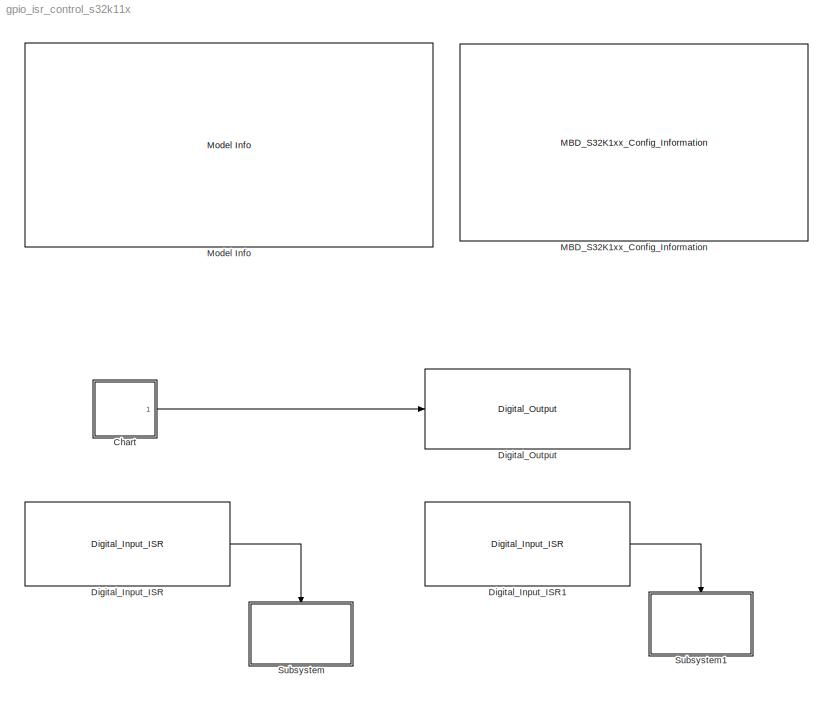
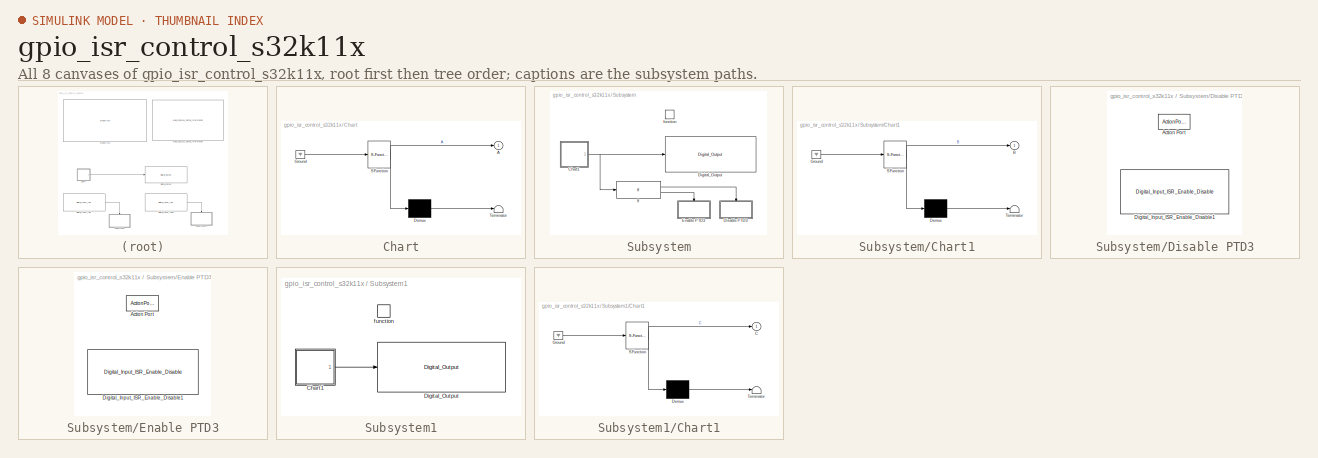
[diagram: thumbnail index - all 8 canvases of the model, root first then tree order]
MODEL gpio_isr_control_s32k11x
KIND model
CONFIG InitFcn = mbd_s32k_consistency_checks(bdroot(gcs));
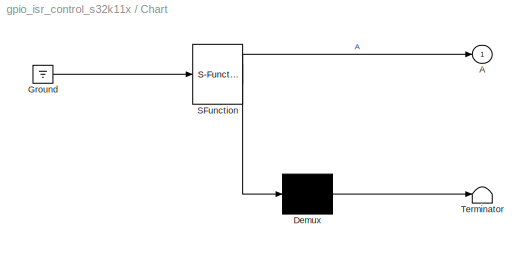
BLOCK [SubSystem] Chart
  ErrorFcn = Stateflow.Translate.translate
  PermitHierarchicalResolution = ExplicitOnly
  Ports = [0, 1]
  RequestExecContextInheritance = off
  SFBlockType = Chart
  SID = 3
  TreatAsAtomicUnit = on
  Variant = off
BLOCK [Outport] Chart/ A
  IconDisplay = Port number
  SID = 3::6
BLOCK [Demux] Chart/ Demux 
  Outputs = 1
  Ports = [1, 1]
  SID = 3::40
BLOCK [Ground] Chart/ Ground 
  SID = 3::42
BLOCK [S-Function] Chart/ SFunction 
  EnableBusSupport = off
  FunctionName = sf_sfun
  PortCounts = [1 2]
  Ports = [1, 2]
  SFcnIsStateOwnerBlock = off
  SFunctionDeploymentMode = off
  SID = 3::39
  Tag = Stateflow S-Function gpio_isr_control_s32k11x 3
BLOCK [Terminator] Chart/ Terminator 
  SID = 3::41
BLOCK [Reference] Digital_Input_ISR  REF=mbd_s32k1xx_ec_toolbox/GPIO Blocks/Digital_Input_ISR
  Ports = [0, 1]
  SID = 10
  SourceBlock = mbd_s32k1xx_ec_toolbox/GPIO Blocks/Digital_Input_ISR
  SourceType = gpi_s32k_isr
  gpio_pin = PTD5: [PTD5 | Port D I/O]
  irqc = on rising-edge
  prio = 3
BLOCK [Reference] Digital_Input_ISR1  REF=mbd_s32k1xx_ec_toolbox/GPIO Blocks/Digital_Input_ISR
  Ports = [0, 1]
  SID = 20
  SourceBlock = mbd_s32k1xx_ec_toolbox/GPIO Blocks/Digital_Input_ISR
  SourceType = gpi_s32k_isr
  gpio_pin = PTD3: [PTD3 | Port D I/O]
  irqc = on rising-edge
  prio = 3
BLOCK [Reference] Digital_Output  REF=mbd_s32k1xx_ec_toolbox/GPIO Blocks/Digital_Output
  Ports = [1]
  SID = 2
  SourceBlock = mbd_s32k1xx_ec_toolbox/GPIO Blocks/Digital_Output
  SourceType = gpio_s32k_output
  drive_strength = Low
  gpio_pin = PTE8: [PTE8 | Port E I/O]
  init_val = Low
BLOCK [Reference] MBD_S32K1xx_Config_Information  REF=mbd_s32k1xx_ec_toolbox/MBD_S32K1xx_Config_Information
  ADC_PcrCheckEnDis = on
  AMMCLIB_PcrCheckEnDis = on
  CMP_PcrCheckEnDis = on
  CSEc_PcrCheckEnDis = on
  ConfigParams_PcrCheckEnDis = on
  FM_PcrCheckEnDis = on
  FTM_Dual_Edge_Inputs_PcrCheckEnDis = on
  FTM_Hall_Sensor_Inputs_PcrCheckEnDis = on
  FTM_Input_Edge_Inputs_PcrCheckEnDis = on
  FTM_PWM_PcrCheckEnDis = on
  FTM_Quadrature_Inputs_PcrCheckEnDis = on
  FlexCAN_PcrCheckEnDis = on
  FlexIO_PcrCheckEnDis = on
  GPIO_InputPcrCheckEnDis = on
  GPIO_OutputPcrCheckEnDis = on
  LIN_PcrCheckEnDis = on
  LPI2C_PcrCheckEnDis = on
  LPSPI_PcrCheckEnDis = on
  LPTMR_PcrCheckEnDis = on
  LPUART_PcrCheckEnDis = on
  ModelRef_PcrCheckEnDis = on
  PDB0_PcrCheckEnDis = on
  PIT_PcrCheckEnDis = on
  Ports = []
  Profile_PcrCheckEnDis = on
  RTC_PcrCheckEnDis = on
  SBC_PcrCheckEnDis = on
  SID = 47
  SourceBlock = mbd_s32k1xx_ec_toolbox/MBD_S32K1xx_Config_Information
  SourceType = MBDTBX_EC_S32K
  WDOG_PcrCheckEnDis = on
  config_params = []
  disp_str = Target : S32K144-64KB_SRAM\nPackage : 100-pin\nSystem clock : 80 MHz\nXTAL clock : External 8 MHz\nCompiler : IAR\nTarget Type : FLASH\nDownload Code after build : off\nStep Tick Interrupt Priority : 15
  ds_import_enable = on
  eDMA_PcrCheckEnDis = on
  gcc_target_assemble_opts = -mcpu=cortex-m0plus -mthumb -g
  gcc_target_compile_opts = -mcpu=cortex-m0plus -mthumb -O1 -g -gstrict-dwarf
  gcc_target_default_lcf = on
  gcc_target_link_opts = -mcpu=cortex-m0plus -mthumb
  gcc_target_user_lcf = S32K116_17_flash.ld
  ghs_target_assemble_opts = -mcpu=cortexm0plus -mthumb -fsoft --gnu_asm
  ghs_target_compile_opts = -mcpu=cortexm0plus -mthumb -fsoft -Ogeneral -Wundef -Wimplicit-int -Wshadow -Wtrigraphs --no_commons --gnu_asm -gnu99 -gdwarf-2 -G
  ghs_target_default_lcf = on
  ghs_target_link_opts = -mcpu=cortexm0plus -mthumb -fsoft
  ghs_target_user_lcf = S32K116_17_flash.ld
  iar_target_assemble_opts = --thumb
  iar_target_compile_opts = --thumb -Ol -e --debug --dlib_config normal
  iar_target_default_lcf = on
  iar_target_link_opts = --no_exceptions --vfe --inline
  iar_target_user_lcf = S32K116_17_flash.icf
  mbdt_ver = 0
  mcu_steptick_prio = 3
  mcu_steptick_timer = LPIT Channel 0
  mcu_system_clock_freq = 40
  mcu_target_name = S32K116
  mcu_target_package = 48-LQFP
  mcu_target_sram_size = 17KB
  mcu_xtal_freq = External 40
  pil_download_enable = off
  pil_download_rate = 57600
  pil_opensda_drive = Custom
  pil_opensda_drive_custom = D
  pil_uart_instance = 0
  pil_uart_rx = PTA2: [LPUART0_RX | Receive]
  pil_uart_tx = PTA3: [LPUART0_TX | Transmit]
  rbl_com_port = Custom
  rbl_com_port_custom = COM1
  rbl_download_enable = on
  rbl_download_interface = OpenSDA
  rbl_restart_request = off
  rbl_start_delay = 5000
  target_compiler = GCC
  target_memory = FLASH
BLOCK [Reference] Model Info  REF=simulink/Model-Wide\nUtilities/Model Info
  DisplayStringWithTags = Model Name: %<ModelName>\n\nDescription: %<Description>
  Frame = off
  HorizontalTextAlignment = Left
  LeftAlignmentValue = 0.02
  MaskDisplayString = Model Name: gpio_isr_control_s32k11x\\n\\nDescription: This model demonstrates the \"GPIO ISR\" functionality.\\n\\nValidation:\\n- Blue LED is blinking during execution\\n- Press SW2 to toggle the Green LED\\n- Press SW3 to enable/disable the SW2 interrupt
  Ports = []
  SID = 46
  SourceBlock = simulink/Model-Wide\nUtilities/Model Info
  SourceProductBaseCode = SL
  SourceProductName = Simulink
  SourceType = CMBlock
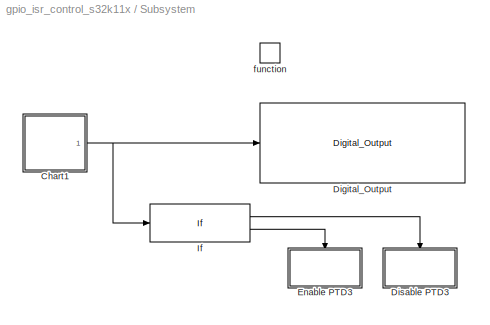
BLOCK [SubSystem] Subsystem
  Ports = [0, 0, 0, 1]
  RequestExecContextInheritance = off
  SID = 13
  Variant = off
BLOCK [SubSystem] Subsystem/Chart1
  ErrorFcn = Stateflow.Translate.translate
  PermitHierarchicalResolution = ExplicitOnly
  Ports = [0, 1]
  RequestExecContextInheritance = off
  SFBlockType = Chart
  SID = 11
  TreatAsAtomicUnit = on
  Variant = off
BLOCK [Outport] Subsystem/Chart1/ B
  IconDisplay = Port number
  SID = 11::6
BLOCK [Demux] Subsystem/Chart1/ Demux 
  Outputs = 1
  Ports = [1, 1]
  SID = 11::40
BLOCK [Ground] Subsystem/Chart1/ Ground 
  SID = 11::42
BLOCK [S-Function] Subsystem/Chart1/ SFunction 
  EnableBusSupport = off
  FunctionName = sf_sfun
  PortCounts = [1 2]
  Ports = [1, 2]
  SFcnIsStateOwnerBlock = off
  SFunctionDeploymentMode = off
  SID = 11::39
  Tag = Stateflow S-Function gpio_isr_control_s32k11x 1
BLOCK [Terminator] Subsystem/Chart1/ Terminator 
  SID = 11::41
BLOCK [Reference] Subsystem/Digital_Output  REF=mbd_s32k1xx_ec_toolbox/GPIO Blocks/Digital_Output
  Ports = [1]
  SID = 54
  SourceBlock = mbd_s32k1xx_ec_toolbox/GPIO Blocks/Digital_Output
  SourceType = gpio_s32k_output
  drive_strength = Low
  gpio_pin = PTD16: [PTD16 | Port D I/O]
  init_val = Low
BLOCK [SubSystem] Subsystem/Disable PTD3
  Ports = [0, 0, 0, 0, 0, 0, 0, 1]
  RTWSystemCode = Nonreusable function
  RequestExecContextInheritance = off
  SID = 36
  TreatAsAtomicUnit = on
  Variant = off
BLOCK [ActionPort] Subsystem/Disable PTD3/Action Port
  SID = 38
BLOCK [Reference] Subsystem/Disable PTD3/Digital_Input_ISR_Enable_Disable1  REF=mbd_s32k1xx_ec_toolbox/GPIO Blocks/Digital_Input_ISR_Enable_Disable
  Ports = []
  SID = 53
  SourceBlock = mbd_s32k1xx_ec_toolbox/GPIO Blocks/Digital_Input_ISR_Enable_Disable
  SourceType = gpi_s32k_isr_control
  gpio_pin = PTD3: [PTD3 | Port D I/O]
  irqc = request disabled
BLOCK [SubSystem] Subsystem/Enable PTD3
  Ports = [0, 0, 0, 0, 0, 0, 0, 1]
  RTWSystemCode = Nonreusable function
  RequestExecContextInheritance = off
  SID = 40
  TreatAsAtomicUnit = on
  Variant = off
BLOCK [ActionPort] Subsystem/Enable PTD3/Action Port
  SID = 41
BLOCK [Reference] Subsystem/Enable PTD3/Digital_Input_ISR_Enable_Disable1  REF=mbd_s32k1xx_ec_toolbox/GPIO Blocks/Digital_Input_ISR_Enable_Disable
  Ports = []
  SID = 52
  SourceBlock = mbd_s32k1xx_ec_toolbox/GPIO Blocks/Digital_Input_ISR_Enable_Disable
  SourceType = gpi_s32k_isr_control
  gpio_pin = PTD3: [PTD3 | Port D I/O]
  irqc = on rising-edge
BLOCK [If] Subsystem/If
  IfExpression = u1 == 1
  Ports = [1, 2]
  SID = 27
BLOCK [TriggerPort] Subsystem/function
  Ports = []
  SID = 18
  StatesWhenEnabling = held
  TriggerType = function-call
  VariantControl = Variant
BLOCK [SubSystem] Subsystem1
  Ports = [0, 0, 0, 1]
  RequestExecContextInheritance = off
  SID = 21
  Variant = off
BLOCK [SubSystem] Subsystem1/Chart1
  ErrorFcn = Stateflow.Translate.translate
  PermitHierarchicalResolution = ExplicitOnly
  Ports = [0, 1]
  RequestExecContextInheritance = off
  SFBlockType = Chart
  SID = 23
  TreatAsAtomicUnit = on
  Variant = off
BLOCK [Outport] Subsystem1/Chart1/ C
  IconDisplay = Port number
  SID = 23::6
BLOCK [Demux] Subsystem1/Chart1/ Demux 
  Outputs = 1
  Ports = [1, 1]
  SID = 23::40
BLOCK [Ground] Subsystem1/Chart1/ Ground 
  SID = 23::42
BLOCK [S-Function] Subsystem1/Chart1/ SFunction 
  EnableBusSupport = off
  FunctionName = sf_sfun
  PortCounts = [1 2]
  Ports = [1, 2]
  SFcnIsStateOwnerBlock = off
  SFunctionDeploymentMode = off
  SID = 23::39
  Tag = Stateflow S-Function gpio_isr_control_s32k11x 2
BLOCK [Terminator] Subsystem1/Chart1/ Terminator 
  SID = 23::41
BLOCK [Reference] Subsystem1/Digital_Output  REF=mbd_s32k1xx_ec_toolbox/GPIO Blocks/Digital_Output
  Ports = [1]
  SID = 51
  SourceBlock = mbd_s32k1xx_ec_toolbox/GPIO Blocks/Digital_Output
  SourceType = gpio_s32k_output
  drive_strength = Low
  gpio_pin = PTD15: [PTD15 | Port D I/O]
  init_val = Low
BLOCK [TriggerPort] Subsystem1/function
  Ports = []
  SID = 22
  StatesWhenEnabling = held
  TriggerType = function-call
  VariantControl = Variant
LINE Chart/ Demux :1 -> Chart/ Terminator :1
LINE Chart/ Ground :1 -> Chart/ SFunction :1
LINE Chart/ SFunction :1 -> Chart/ Demux :1
LINE Chart/ SFunction :2 -> Chart/ A:1
LINE Chart:1 -> Digital_Output:1
LINE Digital_Input_ISR1:1 -> Subsystem1:trigger
LINE Digital_Input_ISR:1 -> Subsystem:trigger
LINE Subsystem/Chart1/ Demux :1 -> Subsystem/Chart1/ Terminator :1
LINE Subsystem/Chart1/ Ground :1 -> Subsystem/Chart1/ SFunction :1
LINE Subsystem/Chart1/ SFunction :1 -> Subsystem/Chart1/ Demux :1
LINE Subsystem/Chart1/ SFunction :2 -> Subsystem/Chart1/ B:1
NET Subsystem/Chart1:1 -> Subsystem/Digital_Output:1, Subsystem/If:1
LINE Subsystem/If:1 -> Subsystem/Disable PTD3:ifaction
LINE Subsystem/If:2 -> Subsystem/Enable PTD3:ifaction
LINE Subsystem1/Chart1/ Demux :1 -> Subsystem1/Chart1/ Terminator :1
LINE Subsystem1/Chart1/ Ground :1 -> Subsystem1/Chart1/ SFunction :1
LINE Subsystem1/Chart1/ SFunction :1 -> Subsystem1/Chart1/ Demux :1
LINE Subsystem1/Chart1/ SFunction :2 -> Subsystem1/Chart1/ C:1
LINE Subsystem1/Chart1:1 -> Subsystem1/Digital_Output:1
note: NET lines group one-source signal fan-out (src -> all destinations, sorted); 1:1 wires keep LINE
CHART Subsystem/Chart1 states=2 transitions=3
  STATE_LABEL 'B'
  STATE_LABEL 'B1'
CHART Subsystem1/Chart1 states=2 transitions=3
  STATE_LABEL 'C'
  STATE_LABEL 'C1'
CHART Chart states=2 transitions=3
  STATE_LABEL 'A'
  STATE_LABEL 'A1'
